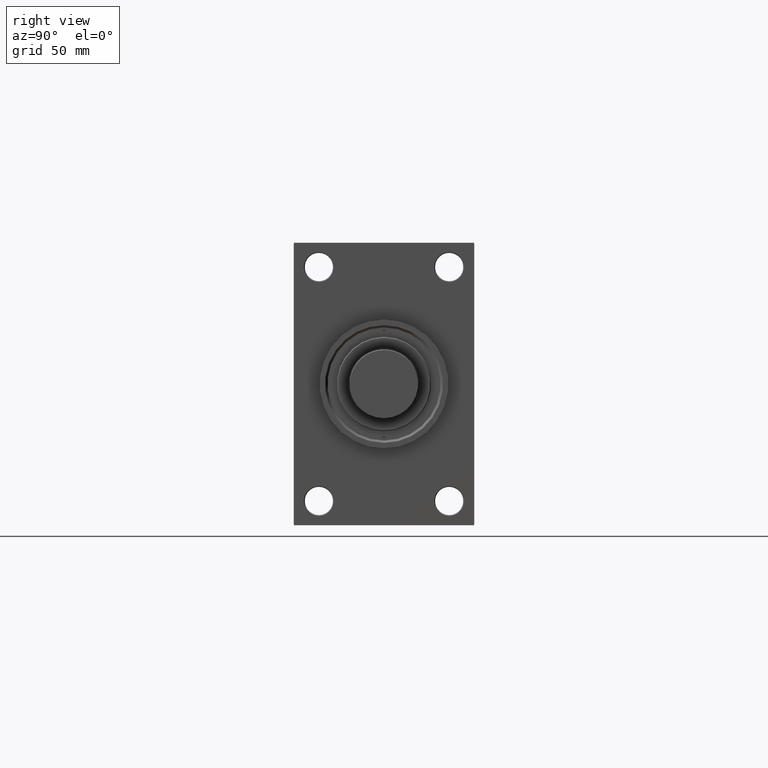
[diagram: clean part render]
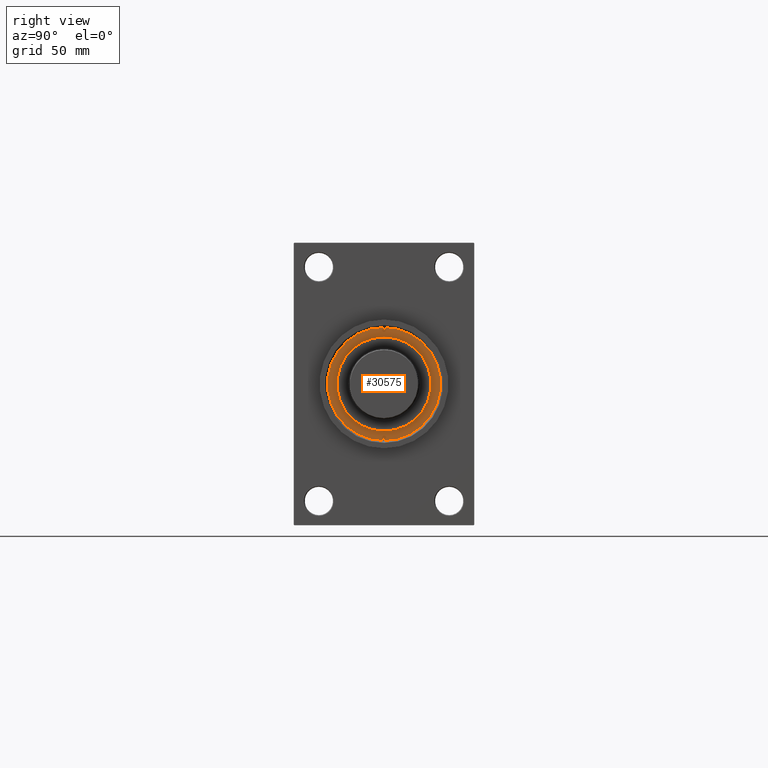
[diagram: same view with one face highlighted and labeled with its STEP entity id]
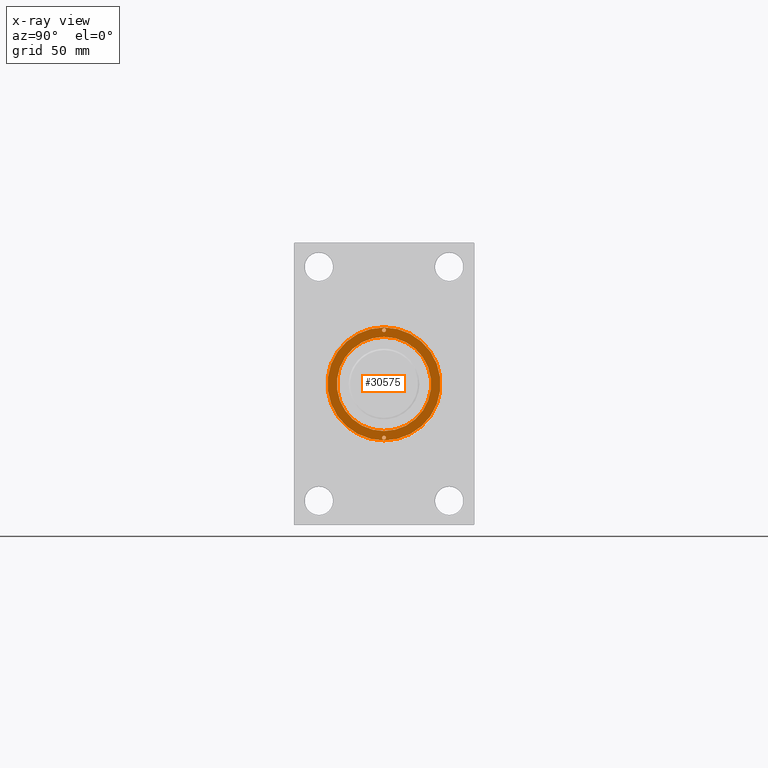
[diagram: x-ray of the same camera — body ghosted, the highlighted face saturated]
A machine part, right view. The second image highlights one B-rep face of the part: STEP entity #30575.
The next image is the same camera in x-ray: the body ghosted, the highlighted face saturated — about 0% of this face is hidden behind the body in this view.
In plain terms, the highlighted planar face has unit normal (1, -0, -0).
Its self-contained STEP definition (entity closure, byte-faithful):
#99 = EDGE_CURVE ( 'NONE', #43671, #29545, #30157, .T. ) ;
#594 = CIRCLE ( 'NONE', #30274, 1.250000000000001110 ) ;
#2423 = CARTESIAN_POINT ( 'NONE',  ( -35.50000000000000711, 1.530808498934193050E-16, 43.25999999999999801 ) ) ;
#2942 = EDGE_CURVE ( 'NONE', #44714, #20011, #13834, .T. ) ;
#3158 = CARTESIAN_POINT ( 'NONE',  ( 35.50000000000000711, 0.000000000000000000, 43.25999999999999801 ) ) ;
#3298 = CARTESIAN_POINT ( 'NONE',  ( -36.00000000000000000, 0.000000000000000000, 43.25999999999999801 ) ) ;
#3909 = CARTESIAN_POINT ( 'NONE',  ( 30.00000000000000000, 3.673940397442059178E-15, 43.25999999999999801 ) ) ;
#4494 = DIRECTION ( 'NONE',  ( 0.000000000000000000, 0.000000000000000000, 1.000000000000000000 ) ) ;
#4550 = AXIS2_PLACEMENT_3D ( 'NONE', #10150, #31909, #39917 ) ;
#4963 = CARTESIAN_POINT ( 'NONE',  ( 0.000000000000000000, 0.000000000000000000, 43.25999999999999801 ) ) ;
#5594 = ORIENTED_EDGE ( 'NONE', *, *, #41904, .F. ) ;
#6014 = EDGE_CURVE ( 'NONE', #20011, #44714, #18941, .T. ) ;
#8226 = CARTESIAN_POINT ( 'NONE',  ( 0.000000000000000000, 0.000000000000000000, 43.25999999999999801 ) ) ;
#8260 = CIRCLE ( 'NONE', #16818, 30.00000000000000000 ) ;
#8411 = DIRECTION ( 'NONE',  ( 1.000000000000000000, 0.000000000000000000, 0.000000000000000000 ) ) ;
#8925 = PLANE ( 'NONE',  #18767 ) ;
#10150 = CARTESIAN_POINT ( 'NONE',  ( -34.25000000000000000, 0.000000000000000000, 43.25999999999999801 ) ) ;
#11559 = CIRCLE ( 'NONE', #4550, 1.250000000000001110 ) ;
#12165 = DIRECTION ( 'NONE',  ( 1.000000000000000000, 0.000000000000000000, 0.000000000000000000 ) ) ;
#12592 = EDGE_CURVE ( 'NONE', #29545, #43671, #15271, .T. ) ;
#12740 = VERTEX_POINT ( 'NONE', #30110 ) ;
#13834 = CIRCLE ( 'NONE', #38799, 1.250000000000001110 ) ;
#14689 = AXIS2_PLACEMENT_3D ( 'NONE', #4963, #4494, #8411 ) ;
#15271 = CIRCLE ( 'NONE', #35530, 36.00000000000000000 ) ;
#15598 = CARTESIAN_POINT ( 'NONE',  ( 34.25000000000000000, 0.000000000000000000, 43.25999999999999801 ) ) ;
#16089 = CARTESIAN_POINT ( 'NONE',  ( 34.25000000000000000, 0.000000000000000000, 43.25999999999999801 ) ) ;
#16488 = DIRECTION ( 'NONE',  ( 1.000000000000000000, 0.000000000000000000, -0.000000000000000000 ) ) ;
#16818 = AXIS2_PLACEMENT_3D ( 'NONE', #29297, #25623, #22196 ) ;
#17498 = DIRECTION ( 'NONE',  ( 1.000000000000000000, 0.000000000000000000, 0.000000000000000000 ) ) ;
#18066 = ORIENTED_EDGE ( 'NONE', *, *, #37786, .F. ) ;
#18767 = AXIS2_PLACEMENT_3D ( 'NONE', #23825, #20160, #16488 ) ;
#18770 = CARTESIAN_POINT ( 'NONE',  ( -33.00000000000000000, 0.000000000000000000, 43.25999999999999801 ) ) ;
#18798 = VERTEX_POINT ( 'NONE', #3909 ) ;
#18941 = CIRCLE ( 'NONE', #40780, 1.250000000000001110 ) ;
#19234 = AXIS2_PLACEMENT_3D ( 'NONE', #47298, #25320, #17498 ) ;
#19532 = DIRECTION ( 'NONE',  ( 1.000000000000000000, 0.000000000000000000, 0.000000000000000000 ) ) ;
#20011 = VERTEX_POINT ( 'NONE', #3158 ) ;
#20160 = DIRECTION ( 'NONE',  ( 0.000000000000000000, 0.000000000000000000, 1.000000000000000000 ) ) ;
#21410 = EDGE_LOOP ( 'NONE', ( #31929, #44709 ) ) ;
#21922 = ORIENTED_EDGE ( 'NONE', *, *, #99, .T. ) ;
#22196 = DIRECTION ( 'NONE',  ( 1.000000000000000000, 0.000000000000000000, 0.000000000000000000 ) ) ;
#22861 = FACE_OUTER_BOUND ( 'NONE', #32304, .T. ) ;
#22903 = EDGE_LOOP ( 'NONE', ( #5594, #45249 ) ) ;
#23104 = FACE_BOUND ( 'NONE', #22903, .T. ) ;
#23825 = CARTESIAN_POINT ( 'NONE',  ( 0.000000000000000000, 0.000000000000000000, 43.25999999999999801 ) ) ;
#24946 = ORIENTED_EDGE ( 'NONE', *, *, #47218, .F. ) ;
#25209 = EDGE_LOOP ( 'NONE', ( #18066, #24946 ) ) ;
#25320 = DIRECTION ( 'NONE',  ( 0.000000000000000000, 0.000000000000000000, 1.000000000000000000 ) ) ;
#25623 = DIRECTION ( 'NONE',  ( 0.000000000000000000, 0.000000000000000000, 1.000000000000000000 ) ) ;
#26163 = CARTESIAN_POINT ( 'NONE',  ( 36.00000000000000000, 4.408728476930470856E-15, 43.25999999999999801 ) ) ;
#26563 = DIRECTION ( 'NONE',  ( 1.000000000000000000, 0.000000000000000000, 0.000000000000000000 ) ) ;
#26633 = DIRECTION ( 'NONE',  ( -0.000000000000000000, -0.000000000000000000, 1.000000000000000000 ) ) ;
#28091 = VERTEX_POINT ( 'NONE', #18770 ) ;
#29297 = CARTESIAN_POINT ( 'NONE',  ( 0.000000000000000000, 0.000000000000000000, 43.25999999999999801 ) ) ;
#29545 = VERTEX_POINT ( 'NONE', #26163 ) ;
#30110 = CARTESIAN_POINT ( 'NONE',  ( -30.00000000000000000, 0.000000000000000000, 43.25999999999999801 ) ) ;
#30157 = CIRCLE ( 'NONE', #19234, 36.00000000000000000 ) ;
#30274 = AXIS2_PLACEMENT_3D ( 'NONE', #31062, #35666, #35191 ) ;
#30575 = ADVANCED_FACE ( 'NONE', ( #23104, #41649, #42363, #22861 ), #8925, .T. ) ;
#31062 = CARTESIAN_POINT ( 'NONE',  ( -34.25000000000000000, 0.000000000000000000, 43.25999999999999801 ) ) ;
#31909 = DIRECTION ( 'NONE',  ( -0.000000000000000000, -0.000000000000000000, 1.000000000000000000 ) ) ;
#31929 = ORIENTED_EDGE ( 'NONE', *, *, #6014, .F. ) ;
#32304 = EDGE_LOOP ( 'NONE', ( #21922, #33202 ) ) ;
#33202 = ORIENTED_EDGE ( 'NONE', *, *, #12592, .T. ) ;
#35191 = DIRECTION ( 'NONE',  ( 1.000000000000000000, 0.000000000000000000, 0.000000000000000000 ) ) ;
#35530 = AXIS2_PLACEMENT_3D ( 'NONE', #8226, #45818, #26563 ) ;
#35666 = DIRECTION ( 'NONE',  ( -0.000000000000000000, -0.000000000000000000, 1.000000000000000000 ) ) ;
#37321 = CIRCLE ( 'NONE', #14689, 30.00000000000000000 ) ;
#37786 = EDGE_CURVE ( 'NONE', #12740, #18798, #8260, .T. ) ;
#38799 = AXIS2_PLACEMENT_3D ( 'NONE', #16089, #26633, #19532 ) ;
#39005 = CARTESIAN_POINT ( 'NONE',  ( 33.00000000000000000, 1.530808498934193050E-16, 43.25999999999999801 ) ) ;
#39835 = VERTEX_POINT ( 'NONE', #2423 ) ;
#39917 = DIRECTION ( 'NONE',  ( 1.000000000000000000, 0.000000000000000000, 0.000000000000000000 ) ) ;
#40780 = AXIS2_PLACEMENT_3D ( 'NONE', #15598, #44652, #12165 ) ;
#41649 = FACE_BOUND ( 'NONE', #21410, .T. ) ;
#41904 = EDGE_CURVE ( 'NONE', #28091, #39835, #594, .T. ) ;
#42363 = FACE_BOUND ( 'NONE', #25209, .T. ) ;
#42723 = EDGE_CURVE ( 'NONE', #39835, #28091, #11559, .T. ) ;
#43671 = VERTEX_POINT ( 'NONE', #3298 ) ;
#44652 = DIRECTION ( 'NONE',  ( -0.000000000000000000, -0.000000000000000000, 1.000000000000000000 ) ) ;
#44709 = ORIENTED_EDGE ( 'NONE', *, *, #2942, .F. ) ;
#44714 = VERTEX_POINT ( 'NONE', #39005 ) ;
#45249 = ORIENTED_EDGE ( 'NONE', *, *, #42723, .F. ) ;
#45818 = DIRECTION ( 'NONE',  ( 0.000000000000000000, 0.000000000000000000, 1.000000000000000000 ) ) ;
#47218 = EDGE_CURVE ( 'NONE', #18798, #12740, #37321, .T. ) ;
#47298 = CARTESIAN_POINT ( 'NONE',  ( 0.000000000000000000, 0.000000000000000000, 43.25999999999999801 ) ) ;